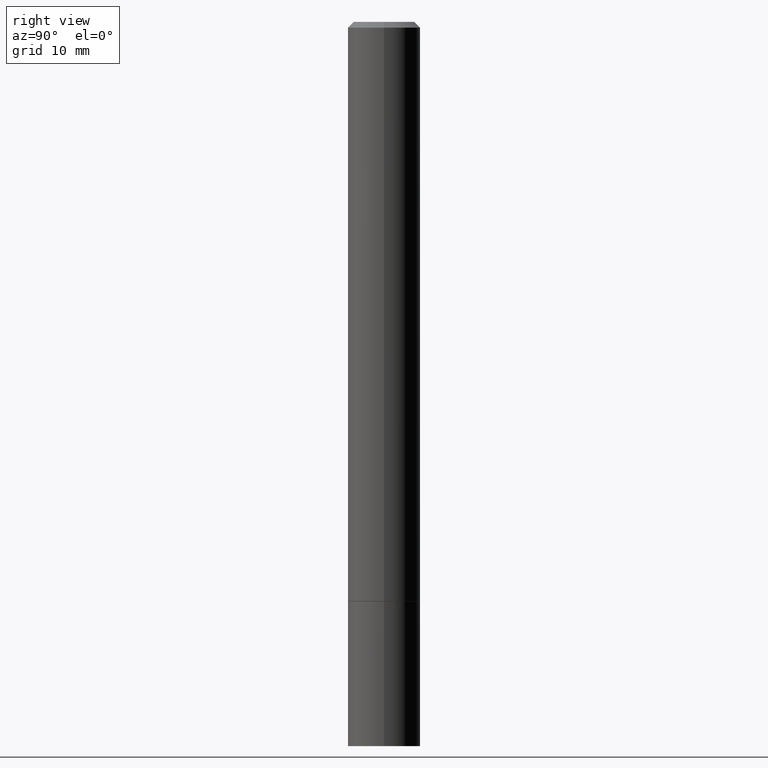
[diagram: clean part render]
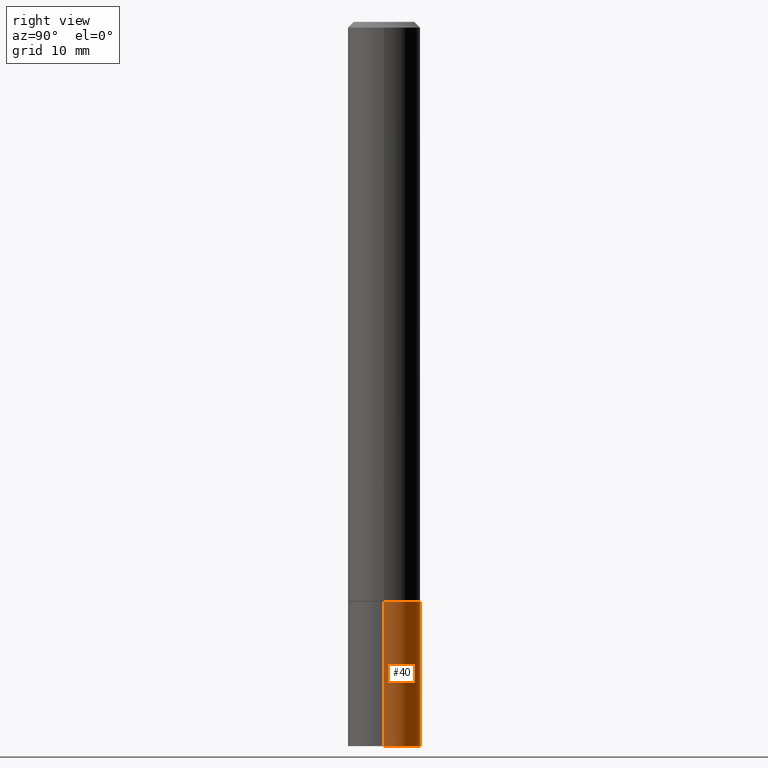
[diagram: same view with one face highlighted and labeled with its STEP entity id]
A machine part, right view. The second image highlights one B-rep face of the part: STEP entity #40.
In plain terms, the highlighted cylindrical surface (edge-blend (fillet) strip) has radius 3.175 mm, axis along (-0, 0, 1).
Its self-contained STEP definition (entity closure, byte-faithful):
#19 = DIRECTION ( 'NONE',  ( 1.000000000000000000, -6.982962677686270655E-15, 0.000000000000000000 ) ) ;
#21 = EDGE_LOOP ( 'NONE', ( #108, #232, #200, #326 ) ) ;
#22 = DIRECTION ( 'NONE',  ( -2.445468806185136597E-29, 3.491481338843145583E-15, 1.000000000000000000 ) ) ;
#24 = CARTESIAN_POINT ( 'NONE',  ( -0.1250000000000000000, 8.881784197001252323E-16, -6.148668862818632227E-30 ) ) ;
#35 = DIRECTION ( 'NONE',  ( 1.000000000000000000, -6.982962677686270655E-15, 0.000000000000000000 ) ) ;
#36 = CIRCLE ( 'NONE', #121, 0.1250000000000000000 ) ;
#40 = ADVANCED_FACE ( 'NONE', ( #111 ), #116, .T. ) ;
#41 = VERTEX_POINT ( 'NONE', #315 ) ;
#66 = VECTOR ( 'NONE', #142, 39.37007874015748143 ) ;
#71 = LINE ( 'NONE', #131, #134 ) ;
#73 = VERTEX_POINT ( 'NONE', #322 ) ;
#78 = EDGE_CURVE ( 'NONE', #41, #73, #36, .T. ) ;
#95 = EDGE_CURVE ( 'NONE', #338, #41, #71, .T. ) ;
#104 = DIRECTION ( 'NONE',  ( -2.445468806185136597E-29, 3.491481338843145583E-15, 1.000000000000000000 ) ) ;
#108 = ORIENTED_EDGE ( 'NONE', *, *, #333, .T. ) ;
#111 = FACE_OUTER_BOUND ( 'NONE', #21, .T. ) ;
#116 = CYLINDRICAL_SURFACE ( 'NONE', #233, 0.1250000000000000000 ) ;
#121 = AXIS2_PLACEMENT_3D ( 'NONE', #297, #104, #19 ) ;
#131 = CARTESIAN_POINT ( 'NONE',  ( 0.1250000000000000000, -8.728703347107833388E-16, 6.095220969744919741E-30 ) ) ;
#134 = VECTOR ( 'NONE', #166, 39.37007874015748143 ) ;
#142 = DIRECTION ( 'NONE',  ( -2.445468806185136877E-29, 3.491481338843145188E-15, 1.000000000000000000 ) ) ;
#165 = CIRCLE ( 'NONE', #313, 0.1250000000000000000 ) ;
#166 = DIRECTION ( 'NONE',  ( -2.445468806185136877E-29, 3.491481338843145188E-15, 1.000000000000000000 ) ) ;
#180 = CARTESIAN_POINT ( 'NONE',  ( -0.1250000000000000000, -6.967654592696952427E-15, -2.500000000000000000 ) ) ;
#200 = ORIENTED_EDGE ( 'NONE', *, *, #78, .F. ) ;
#209 = DIRECTION ( 'NONE',  ( 1.000000000000000000, -6.982962677686266711E-15, 4.876176775795935793E-29 ) ) ;
#226 = CARTESIAN_POINT ( 'NONE',  ( 0.1250000000000000000, -9.601573681818648281E-15, -2.500000000000000000 ) ) ;
#232 = ORIENTED_EDGE ( 'NONE', *, *, #357, .T. ) ;
#233 = AXIS2_PLACEMENT_3D ( 'NONE', #234, #340, #209 ) ;
#234 = CARTESIAN_POINT ( 'NONE',  ( 0.000000000000000000, 0.000000000000000000, 0.000000000000000000 ) ) ;
#236 = CARTESIAN_POINT ( 'NONE',  ( 6.113672015462842613E-29, -8.728703347107864943E-15, -2.500000000000000000 ) ) ;
#279 = VERTEX_POINT ( 'NONE', #180 ) ;
#297 = CARTESIAN_POINT ( 'NONE',  ( 4.890937612370273194E-29, -6.982962677686291165E-15, -2.000000000000000000 ) ) ;
#313 = AXIS2_PLACEMENT_3D ( 'NONE', #236, #22, #35 ) ;
#315 = CARTESIAN_POINT ( 'NONE',  ( 0.1250000000000000000, -7.855833012397075293E-15, -2.000000000000000000 ) ) ;
#322 = CARTESIAN_POINT ( 'NONE',  ( -0.1250000000000000000, -6.967654592696952427E-15, -2.000000000000000000 ) ) ;
#326 = ORIENTED_EDGE ( 'NONE', *, *, #95, .F. ) ;
#333 = EDGE_CURVE ( 'NONE', #338, #279, #165, .T. ) ;
#338 = VERTEX_POINT ( 'NONE', #226 ) ;
#340 = DIRECTION ( 'NONE',  ( -2.445468806185136597E-29, 3.491481338843145583E-15, 1.000000000000000000 ) ) ;
#343 = LINE ( 'NONE', #24, #66 ) ;
#357 = EDGE_CURVE ( 'NONE', #279, #73, #343, .T. ) ;